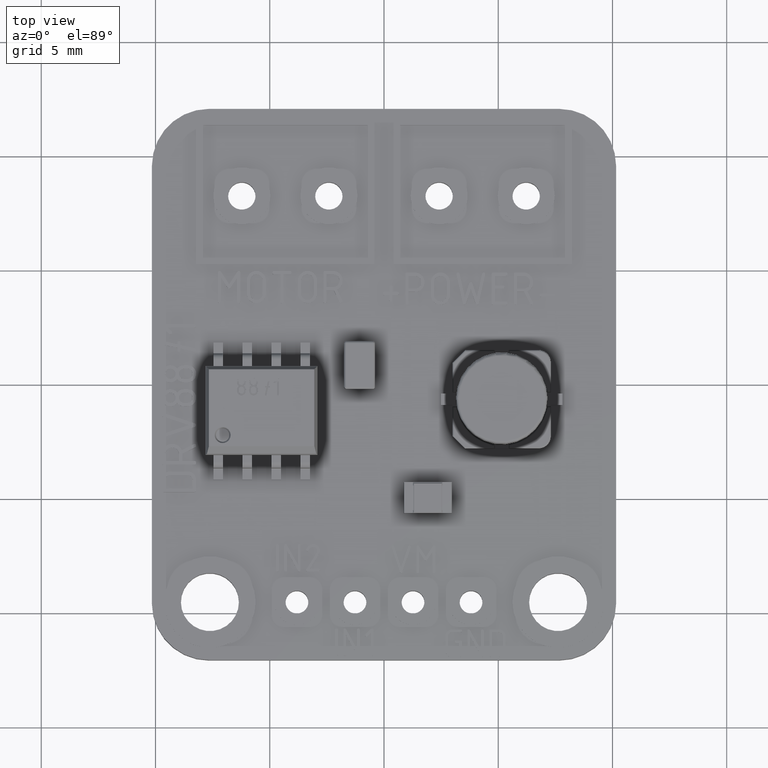
[diagram: clean part render]
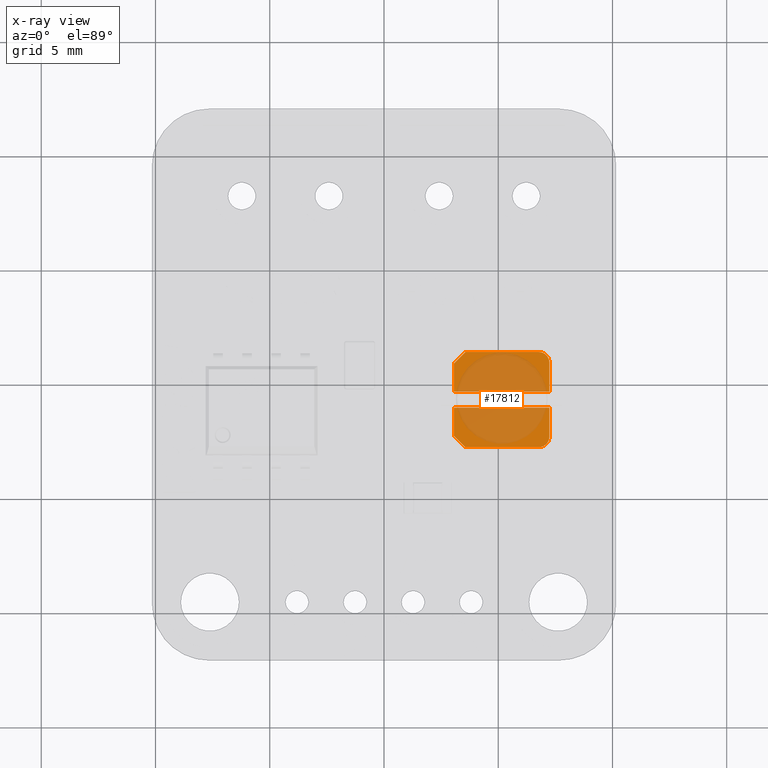
[diagram: x-ray — body ghosted, one internal face saturated and labeled with its STEP entity id]
A machine part, top view, then the same camera in x-ray: the body is ghosted and one INTERNAL B-rep face — a face not visible from any outside direction — is saturated and labeled: STEP entity #17812.
In plain terms, the highlighted planar face has unit normal (0, 0, -1).
Its self-contained STEP definition (entity closure, byte-faithful):
#476=CIRCLE('',#18765,0.475);
#477=CIRCLE('',#18766,0.354047594745416);
#478=CIRCLE('',#18767,0.475);
#479=CIRCLE('',#18768,0.354047594745416);
#1072=PLANE('',#18764);
#1973=FACE_OUTER_BOUND('',#3031,.T.);
#3031=EDGE_LOOP('',(#15553,#15554,#15555,#15556,#15557,#15558,#15559,#15560,
#15561,#15562,#15563,#15564,#15565,#15566,#15567,#15568));
#4583=LINE('',#30613,#6128);
#4584=LINE('',#30615,#6129);
#4585=LINE('',#30619,#6130);
#4586=LINE('',#30621,#6131);
#4587=LINE('',#30625,#6132);
#4588=LINE('',#30627,#6133);
#4589=LINE('',#30629,#6134);
#4590=LINE('',#30631,#6135);
#4591=LINE('',#30635,#6136);
#4592=LINE('',#30637,#6137);
#4593=LINE('',#30639,#6138);
#4594=LINE('',#30640,#6139);
#6128=VECTOR('',#21962,1.25845240525458);
#6129=VECTOR('',#21963,1.33749999999999);
#6130=VECTOR('',#21966,1.33749999999999);
#6131=VECTOR('',#21967,1.25845240525458);
#6132=VECTOR('',#21970,3.19911165235167);
#6133=VECTOR('',#21971,0.708363094478901);
#6134=VECTOR('',#21972,1.23256405760626);
#6135=VECTOR('',#21973,1.33749999999999);
#6136=VECTOR('',#21976,1.33749999999999);
#6137=VECTOR('',#21977,1.23256405760627);
#6138=VECTOR('',#21978,0.708363094478902);
#6139=VECTOR('',#21979,3.19911165235166);
#8407=VERTEX_POINT('',#30609);
#8408=VERTEX_POINT('',#30610);
#8409=VERTEX_POINT('',#30612);
#8410=VERTEX_POINT('',#30614);
#8411=VERTEX_POINT('',#30616);
#8412=VERTEX_POINT('',#30618);
#8413=VERTEX_POINT('',#30620);
#8414=VERTEX_POINT('',#30622);
#8415=VERTEX_POINT('',#30624);
#8416=VERTEX_POINT('',#30626);
#8417=VERTEX_POINT('',#30628);
#8418=VERTEX_POINT('',#30630);
#8419=VERTEX_POINT('',#30632);
#8420=VERTEX_POINT('',#30634);
#8421=VERTEX_POINT('',#30636);
#8422=VERTEX_POINT('',#30638);
#10807=EDGE_CURVE('',#8407,#8408,#476,.T.);
#10808=EDGE_CURVE('',#8408,#8409,#4583,.T.);
#10809=EDGE_CURVE('',#8409,#8410,#4584,.T.);
#10810=EDGE_CURVE('',#8410,#8411,#477,.T.);
#10811=EDGE_CURVE('',#8411,#8412,#4585,.T.);
#10812=EDGE_CURVE('',#8412,#8413,#4586,.T.);
#10813=EDGE_CURVE('',#8413,#8414,#478,.T.);
#10814=EDGE_CURVE('',#8414,#8415,#4587,.T.);
#10815=EDGE_CURVE('',#8415,#8416,#4588,.T.);
#10816=EDGE_CURVE('',#8416,#8417,#4589,.T.);
#10817=EDGE_CURVE('',#8417,#8418,#4590,.T.);
#10818=EDGE_CURVE('',#8418,#8419,#479,.T.);
#10819=EDGE_CURVE('',#8419,#8420,#4591,.T.);
#10820=EDGE_CURVE('',#8420,#8421,#4592,.T.);
#10821=EDGE_CURVE('',#8421,#8422,#4593,.T.);
#10822=EDGE_CURVE('',#8422,#8407,#4594,.T.);
#15553=ORIENTED_EDGE('',*,*,#10807,.T.);
#15554=ORIENTED_EDGE('',*,*,#10808,.T.);
#15555=ORIENTED_EDGE('',*,*,#10809,.T.);
#15556=ORIENTED_EDGE('',*,*,#10810,.T.);
#15557=ORIENTED_EDGE('',*,*,#10811,.T.);
#15558=ORIENTED_EDGE('',*,*,#10812,.T.);
#15559=ORIENTED_EDGE('',*,*,#10813,.T.);
#15560=ORIENTED_EDGE('',*,*,#10814,.T.);
#15561=ORIENTED_EDGE('',*,*,#10815,.T.);
#15562=ORIENTED_EDGE('',*,*,#10816,.T.);
#15563=ORIENTED_EDGE('',*,*,#10817,.T.);
#15564=ORIENTED_EDGE('',*,*,#10818,.T.);
#15565=ORIENTED_EDGE('',*,*,#10819,.T.);
#15566=ORIENTED_EDGE('',*,*,#10820,.T.);
#15567=ORIENTED_EDGE('',*,*,#10821,.T.);
#15568=ORIENTED_EDGE('',*,*,#10822,.T.);
#17812=ADVANCED_FACE('',(#1973),#1072,.T.);
#18764=AXIS2_PLACEMENT_3D('',#30608,#21958,#21959);
#18765=AXIS2_PLACEMENT_3D('',#30611,#21960,#21961);
#18766=AXIS2_PLACEMENT_3D('',#30617,#21964,#21965);
#18767=AXIS2_PLACEMENT_3D('',#30623,#21968,#21969);
#18768=AXIS2_PLACEMENT_3D('',#30633,#21974,#21975);
#21958=DIRECTION('center_axis',(0.,-1.,0.));
#21959=DIRECTION('ref_axis',(0.,0.,-1.));
#21960=DIRECTION('center_axis',(0.,-1.,0.));
#21961=DIRECTION('ref_axis',(0.,0.,-1.));
#21962=DIRECTION('',(0.,0.,-1.));
#21963=DIRECTION('',(1.,0.,0.));
#21964=DIRECTION('center_axis',(0.,1.,0.));
#21965=DIRECTION('ref_axis',(0.,0.,-1.));
#21966=DIRECTION('',(-1.,0.,0.));
#21967=DIRECTION('',(0.,0.,-1.));
#21968=DIRECTION('center_axis',(0.,-1.,0.));
#21969=DIRECTION('ref_axis',(0.,0.,-1.));
#21970=DIRECTION('',(1.,0.,0.));
#21971=DIRECTION('',(0.707106781186549,0.,0.707106781186546));
#21972=DIRECTION('',(0.,0.,1.));
#21973=DIRECTION('',(-1.,0.,0.));
#21974=DIRECTION('center_axis',(0.,1.,0.));
#21975=DIRECTION('ref_axis',(0.,0.,-1.));
#21976=DIRECTION('',(1.,0.,0.));
#21977=DIRECTION('',(0.,0.,1.));
#21978=DIRECTION('',(-0.707106781186548,0.,0.707106781186547));
#21979=DIRECTION('',(-1.,0.,0.));
#30608=CARTESIAN_POINT('Origin',(-1.61249999999999,0.,1.6125));
#30609=CARTESIAN_POINT('',(-1.61249999999999,0.,2.0875));
#30610=CARTESIAN_POINT('',(-2.08749999999999,0.,1.6125));
#30611=CARTESIAN_POINT('Origin',(-1.61249999999999,0.,1.6125));
#30612=CARTESIAN_POINT('',(-2.08749999999999,0.,0.354047594745416));
#30613=CARTESIAN_POINT('',(-2.08749999999999,0.,1.6125));
#30614=CARTESIAN_POINT('',(-0.75,0.,0.354047594745416));
#30615=CARTESIAN_POINT('',(-2.08749999999999,0.,0.354047594745416));
#30616=CARTESIAN_POINT('',(-0.75,0.,-0.354047594745416));
#30617=CARTESIAN_POINT('Origin',(-0.75,0.,2.876223E-16));
#30618=CARTESIAN_POINT('',(-2.08749999999999,0.,-0.354047594745416));
#30619=CARTESIAN_POINT('',(-0.75,0.,-0.354047594745416));
#30620=CARTESIAN_POINT('',(-2.08749999999999,0.,-1.6125));
#30621=CARTESIAN_POINT('',(-2.08749999999999,0.,-0.354047594745416));
#30622=CARTESIAN_POINT('',(-1.61249999999999,0.,-2.0875));
#30623=CARTESIAN_POINT('Origin',(-1.61249999999999,0.,-1.6125));
#30624=CARTESIAN_POINT('',(1.58661165235167,0.,-2.0875));
#30625=CARTESIAN_POINT('',(-1.61249999999999,0.,-2.0875));
#30626=CARTESIAN_POINT('',(2.08749999999999,0.,-1.58661165235168));
#30627=CARTESIAN_POINT('',(1.58661165235167,0.,-2.0875));
#30628=CARTESIAN_POINT('',(2.08749999999999,0.,-0.354047594745416));
#30629=CARTESIAN_POINT('',(2.08749999999999,0.,-1.58661165235168));
#30630=CARTESIAN_POINT('',(0.75,0.,-0.354047594745416));
#30631=CARTESIAN_POINT('',(2.08749999999999,0.,-0.354047594745416));
#30632=CARTESIAN_POINT('',(0.75,0.,0.354047594745416));
#30633=CARTESIAN_POINT('Origin',(0.75,0.,2.876223E-16));
#30634=CARTESIAN_POINT('',(2.08749999999999,0.,0.354047594745416));
#30635=CARTESIAN_POINT('',(0.75,0.,0.354047594745416));
#30636=CARTESIAN_POINT('',(2.08749999999999,0.,1.58661165235168));
#30637=CARTESIAN_POINT('',(2.08749999999999,0.,0.354047594745416));
#30638=CARTESIAN_POINT('',(1.58661165235167,0.,2.0875));
#30639=CARTESIAN_POINT('',(2.08749999999999,0.,1.58661165235168));
#30640=CARTESIAN_POINT('',(1.58661165235167,0.,2.0875));